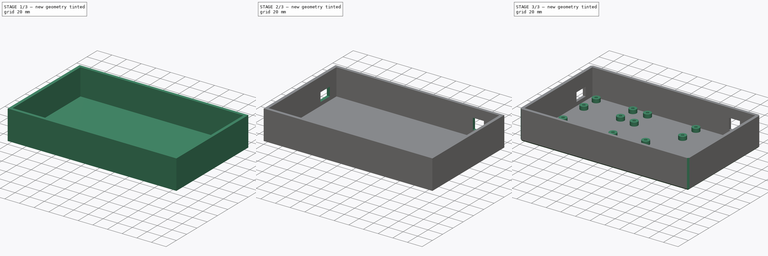
[diagram: build sequence overview — one tinted view per stage of 3, left to right]
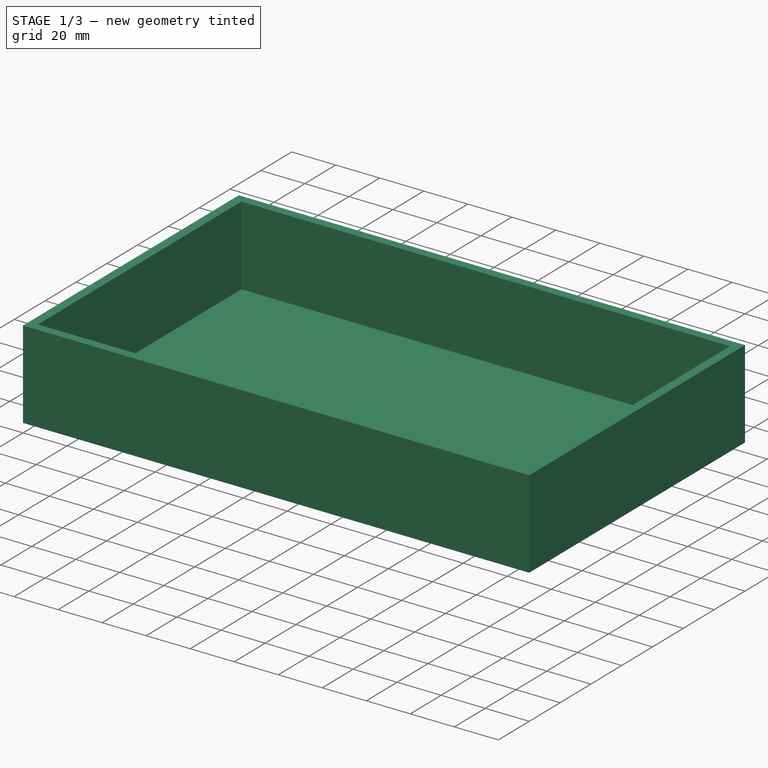
[diagram: stage 1 of 3 — iso view after this stage's code; geometry added in this stage tinted green]
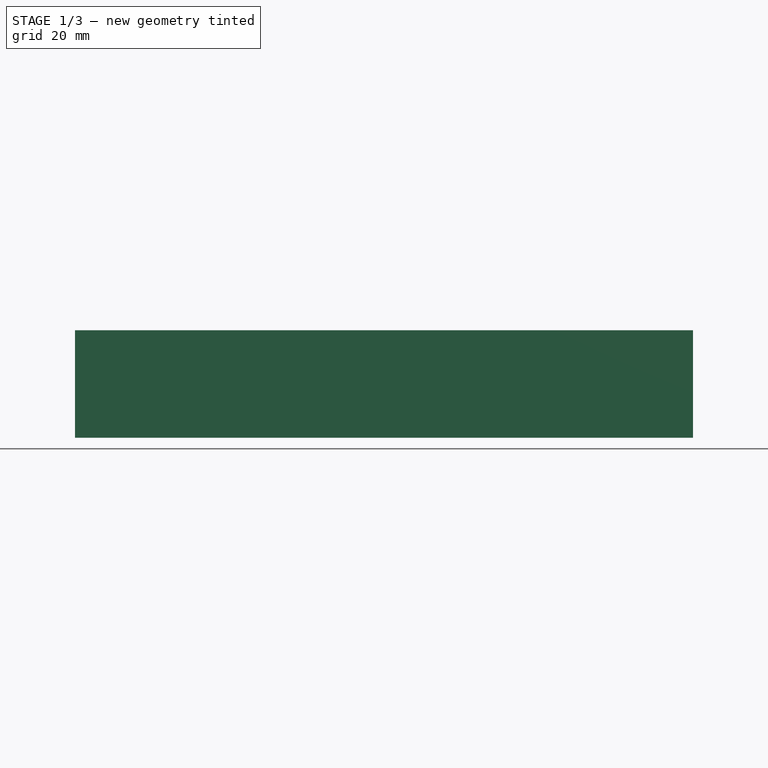
[diagram: stage 1 of 3 — front view after this stage's code; geometry added in this stage tinted green]
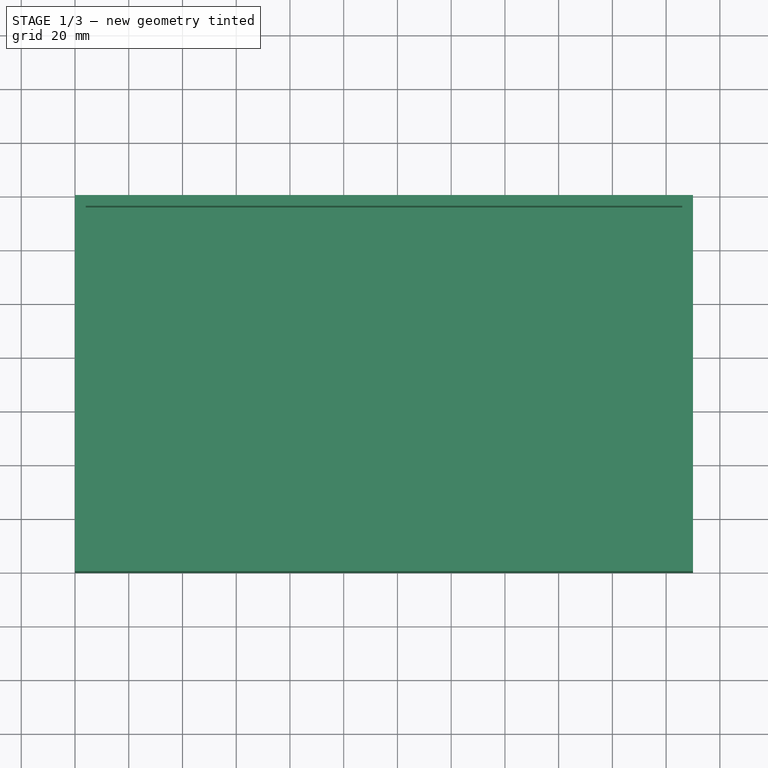
[diagram: stage 1 of 3 — top view after this stage's code; geometry added in this stage tinted green]
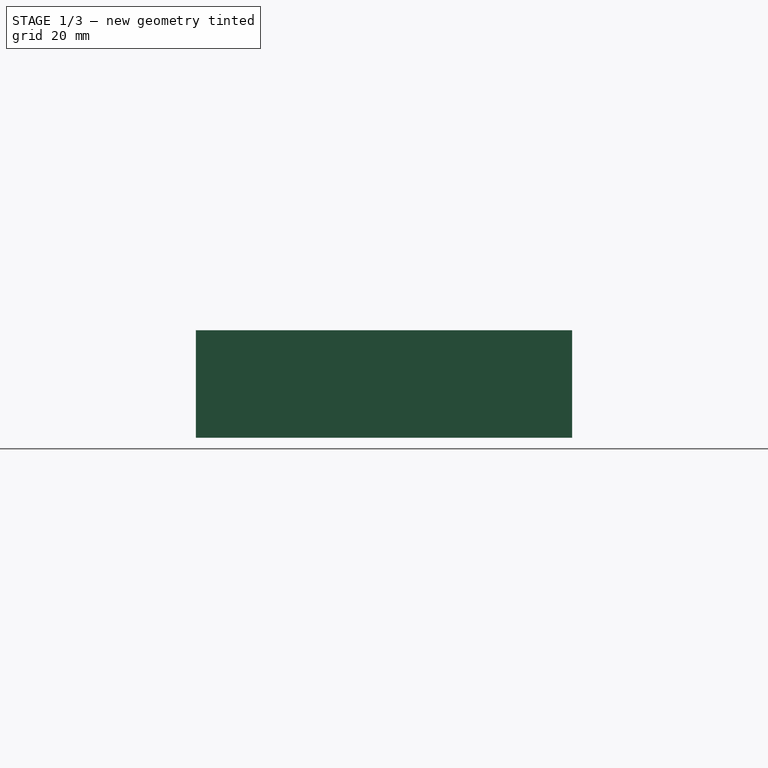
[diagram: stage 1 of 3 — right view after this stage's code; geometry added in this stage tinted green]
FCSTD DOCUMENT  (FreeCAD 0.21R33771 (Git))
Label: Box3
License: All rights reserved
LicenseURL: https://en.wikipedia.org/wiki/All_rights_reserved
objects: Sketcher::SketchObject×6, PartDesign::Pocket×4, PartDesign::Pad×2, PartDesign::Chamfer×1, PartDesign::Body×1
note: 21 computed .brp shape members not serialized (recipe doc carries the construction recipe); baked Part::Feature solids carry a one-line shape summary decoded from their .brp

FEATURE [Sketcher::SketchObject] Sketch
  FullyConstrained = true
  MapMode = 5
  Support = -> [XY_Plane]
  sketch-geometry (4):
    g0: LineSegment StartX=0 StartY=0 StartZ=0 EndX=230 EndY=0 EndZ=0
    g1: LineSegment StartX=230 StartY=0 StartZ=0 EndX=230 EndY=140 EndZ=0
    g2: LineSegment StartX=230 StartY=140 StartZ=0 EndX=0 EndY=140 EndZ=0
    g3: LineSegment StartX=0 StartY=140 StartZ=0 EndX=0 EndY=0 EndZ=0
  constraints (11):
    c: Coincident(g0,g1)
    c: Coincident(g1,g2)
    c: Coincident(g2,g3)
    c: Coincident(g3,g0)
    c: Horizontal(g0)
    c: Horizontal(g2)
    c: Vertical(g1)
    c: Vertical(g3)
    c: Coincident(g0,g-1)
    c: DistanceX(g2,g2) = 230
    c: DistanceY(g3,g3) = 140
FEATURE [PartDesign::Pad] Pad
  Direction = (0,0,1)
  Length = 40
  Length2 = 10
  Profile = -> Sketch
  ReferenceAxis = -> Sketch [N_Axis]
  Type = 0
FEATURE [Sketcher::SketchObject] Sketch001
  ExternalGeometry = -> [Pad]
  FullyConstrained = true
  MapMode = 5
  Placement = pos=(0,0,40) rot=(0,0,1;0rad)
  Support = -> [Pad]
  sketch-geometry (4):
    g0: LineSegment StartX=4 StartY=136 StartZ=0 EndX=226 EndY=136 EndZ=0
    g1: LineSegment StartX=226 StartY=136 StartZ=0 EndX=226 EndY=4 EndZ=0
    g2: LineSegment StartX=226 StartY=4 StartZ=0 EndX=4 EndY=4 EndZ=0
    g3: LineSegment StartX=4 StartY=4 StartZ=0 EndX=4 EndY=136 EndZ=0
  constraints (12):
    c: Coincident(g0,g1)
    c: Coincident(g1,g2)
    c: Coincident(g2,g3)
    c: Coincident(g3,g0)
    c: Horizontal(g0)
    c: Horizontal(g2)
    c: Vertical(g1)
    c: Vertical(g3)
    c: DistanceX(g-4,g0) = 4
    c: DistanceY(g0,g-4) = 4
    c: DistanceY(g-4,g2) = 4
    c: DistanceX(g0,g-5) = 4
FEATURE [PartDesign::Pocket] Pocket
  BaseFeature = -> Pad
  Direction = (0,0,-1)
  Length = 36
  Length2 = 5
  Profile = -> Sketch001
  ReferenceAxis = -> Sketch001 [N_Axis]
  Type = 0
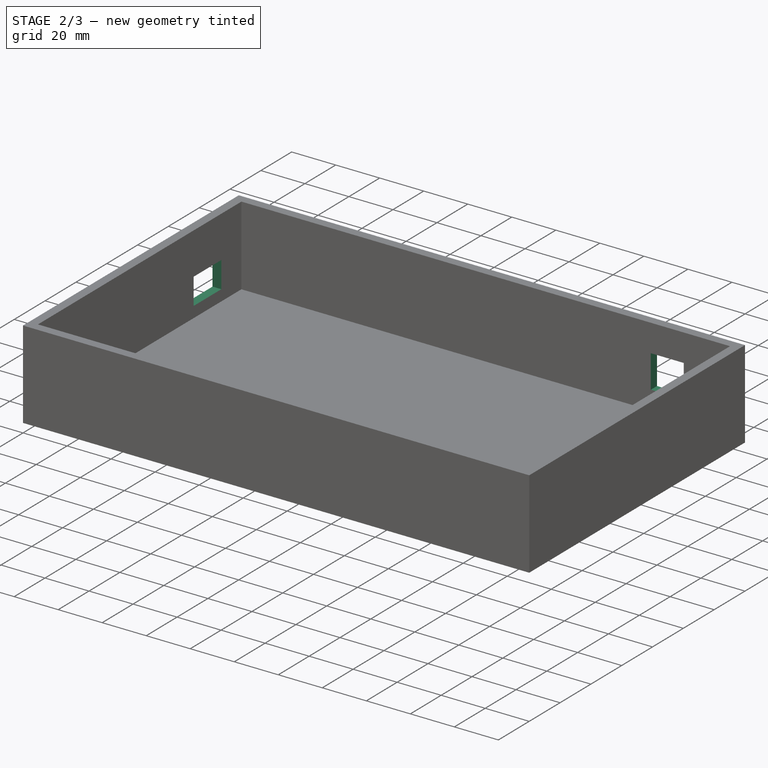
[diagram: stage 2 of 3 — iso view after this stage's code; geometry added in this stage tinted green]
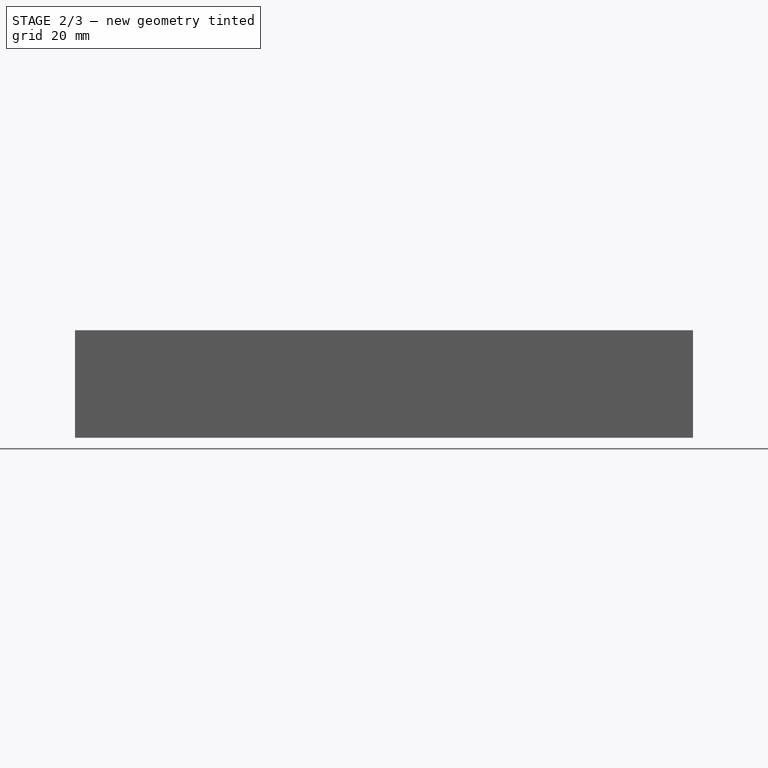
[diagram: stage 2 of 3 — front view after this stage's code; geometry added in this stage tinted green]
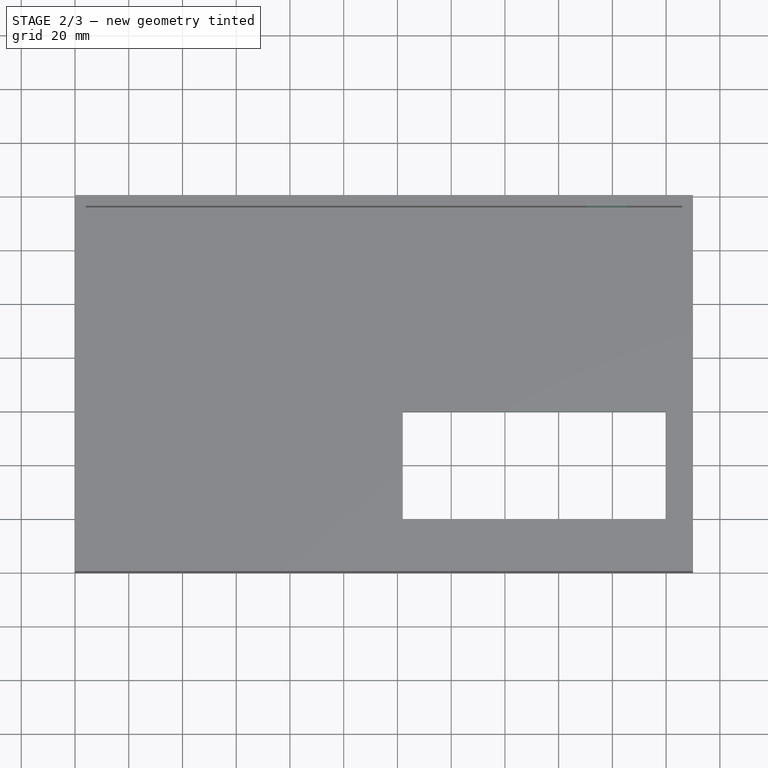
[diagram: stage 2 of 3 — top view after this stage's code; geometry added in this stage tinted green]
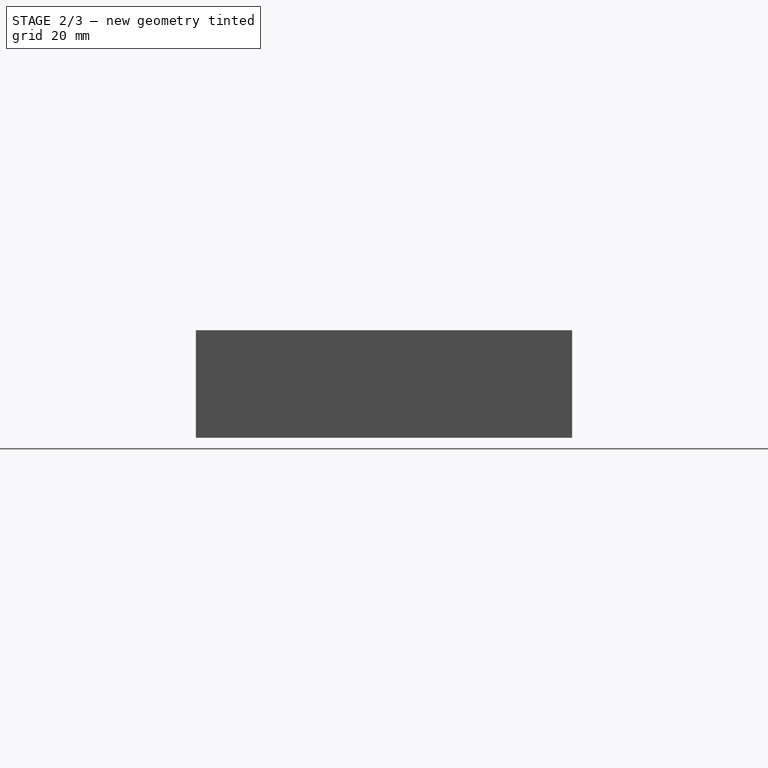
[diagram: stage 2 of 3 — right view after this stage's code; geometry added in this stage tinted green]
FEATURE [Sketcher::SketchObject] Sketch002
  ExternalGeometry = -> [Pocket]
  FullyConstrained = true
  MapMode = 5
  Placement = pos=(0,0,0) rot=(1,0,0;3.14159rad)
  Support = -> [Pocket]
  sketch-geometry (4):
    g0: LineSegment StartX=122 StartY=-20 StartZ=0 EndX=220 EndY=-20 EndZ=0
    g1: LineSegment StartX=220 StartY=-20 StartZ=0 EndX=220 EndY=-60 EndZ=0
    g2: LineSegment StartX=220 StartY=-60 StartZ=0 EndX=122 EndY=-60 EndZ=0
    g3: LineSegment StartX=122 StartY=-60 StartZ=0 EndX=122 EndY=-20 EndZ=0
  constraints (12):
    c: Coincident(g0,g1)
    c: Coincident(g1,g2)
    c: Coincident(g2,g3)
    c: Coincident(g3,g0)
    c: Horizontal(g0)
    c: Horizontal(g2)
    c: Vertical(g1)
    c: Vertical(g3)
    c: DistanceX(g0,g0) = 98
    c: DistanceY(g1,g1) = 40
    c: DistanceY(g0,g-1) = 20
    c: DistanceX(g0,g-4) = 10
FEATURE [PartDesign::Pocket] Pocket001
  BaseFeature = -> Pocket
  Direction = (0,0,1)
  Length = 5
  Length2 = 5
  Profile = -> Sketch002
  ReferenceAxis = -> Sketch002 [N_Axis]
  Type = 0
FEATURE [Sketcher::SketchObject] Sketch003
  ExternalGeometry = -> [Pocket001]
  FullyConstrained = true
  MapMode = 5
  Placement = pos=(0,0,0) rot=(0.57735,-0.57735,-0.57735;2.0944rad)
  Support = -> [Pocket001]
  sketch-geometry (4):
    g0: LineSegment StartX=-123 StartY=21 StartZ=0 EndX=-105 EndY=21 EndZ=0
    g1: LineSegment StartX=-105 StartY=21 StartZ=0 EndX=-105 EndY=9 EndZ=0
    g2: LineSegment StartX=-105 StartY=9 StartZ=0 EndX=-123 EndY=9 EndZ=0
    g3: LineSegment StartX=-123 StartY=9 StartZ=0 EndX=-123 EndY=21 EndZ=0
  constraints (12):
    c: Coincident(g0,g1)
    c: Coincident(g1,g2)
    c: Coincident(g2,g3)
    c: Coincident(g3,g0)
    c: Horizontal(g0)
    c: Horizontal(g2)
    c: Vertical(g1)
    c: Vertical(g3)
    c: DistanceX(g0,g0) = 18
    c: DistanceY(g3,g3) = 12
    c: DistanceX(g-3,g2) = 17
    c: DistanceY(g-4,g2) = 9
FEATURE [PartDesign::Pocket] Pocket002
  BaseFeature = -> Pocket001
  Direction = (1,0,0)
  Length = 5
  Length2 = 5
  Profile = -> Sketch003
  ReferenceAxis = -> Sketch003 [N_Axis]
  Type = 0
FEATURE [Sketcher::SketchObject] Sketch004
  ExternalGeometry = -> [Pocket002]
  FullyConstrained = true
  MapMode = 5
  Placement = pos=(0,140,0) rot=(0,0.707107,0.707107;3.14159rad)
  Support = -> [Pocket002]
  sketch-geometry (4):
    g0: LineSegment StartX=-205 StartY=27.5 StartZ=0 EndX=-190 EndY=27.5 EndZ=0
    g1: LineSegment StartX=-190 StartY=27.5 StartZ=0 EndX=-190 EndY=12.5 EndZ=0
    g2: LineSegment StartX=-190 StartY=12.5 StartZ=0 EndX=-205 EndY=12.5 EndZ=0
    g3: LineSegment StartX=-205 StartY=12.5 StartZ=0 EndX=-205 EndY=27.5 EndZ=0
  constraints (12):
    c: Coincident(g0,g1)
    c: Coincident(g1,g2)
    c: Coincident(g2,g3)
    c: Coincident(g3,g0)
    c: Horizontal(g0)
    c: Horizontal(g2)
    c: Vertical(g1)
    c: Vertical(g3)
    c: DistanceX(g0,g0) = 15
    c: DistanceY(g3,g3) = 15
    c: DistanceY(g0,g-4) = 12.5
    c: DistanceX(g-3,g0) = 25
FEATURE [PartDesign::Pocket] Pocket003
  BaseFeature = -> Pocket002
  Direction = (0,-1,2e-16)
  Length = 5
  Length2 = 5
  Profile = -> Sketch004
  ReferenceAxis = -> Sketch004 [N_Axis]
  Type = 0
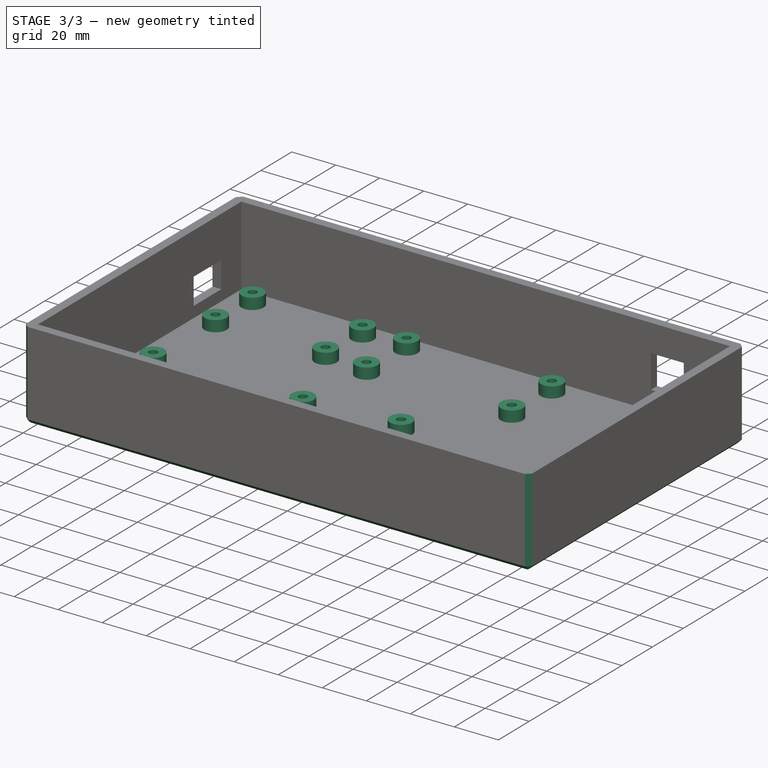
[diagram: stage 3 of 3 — iso view after this stage's code; geometry added in this stage tinted green]
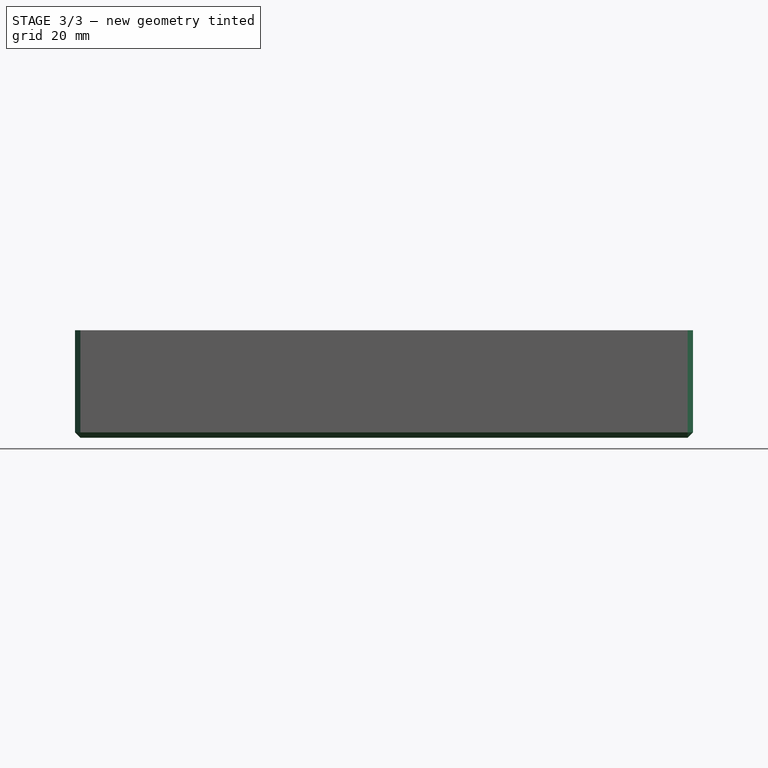
[diagram: stage 3 of 3 — front view after this stage's code; geometry added in this stage tinted green]
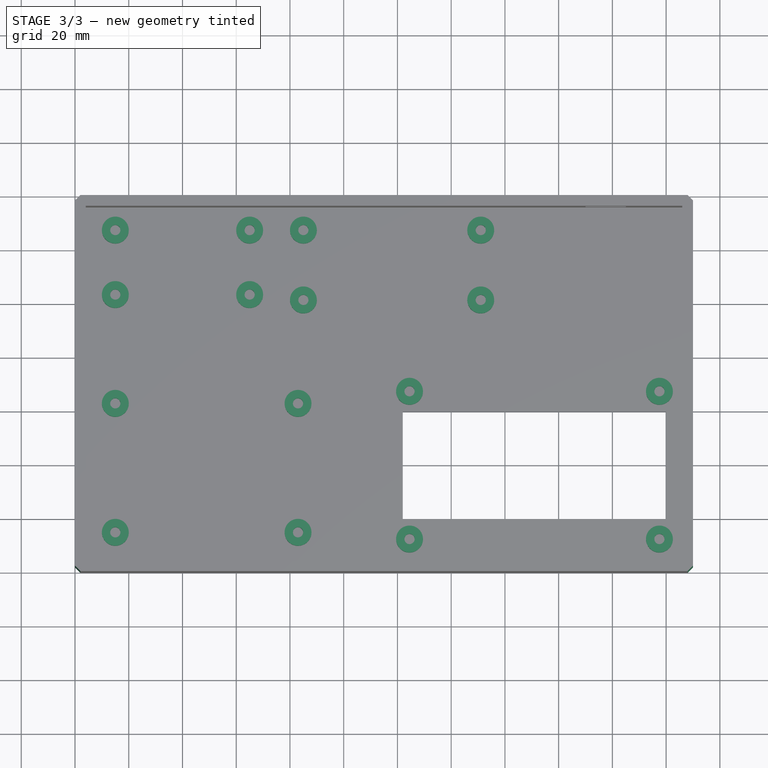
[diagram: stage 3 of 3 — top view after this stage's code; geometry added in this stage tinted green]
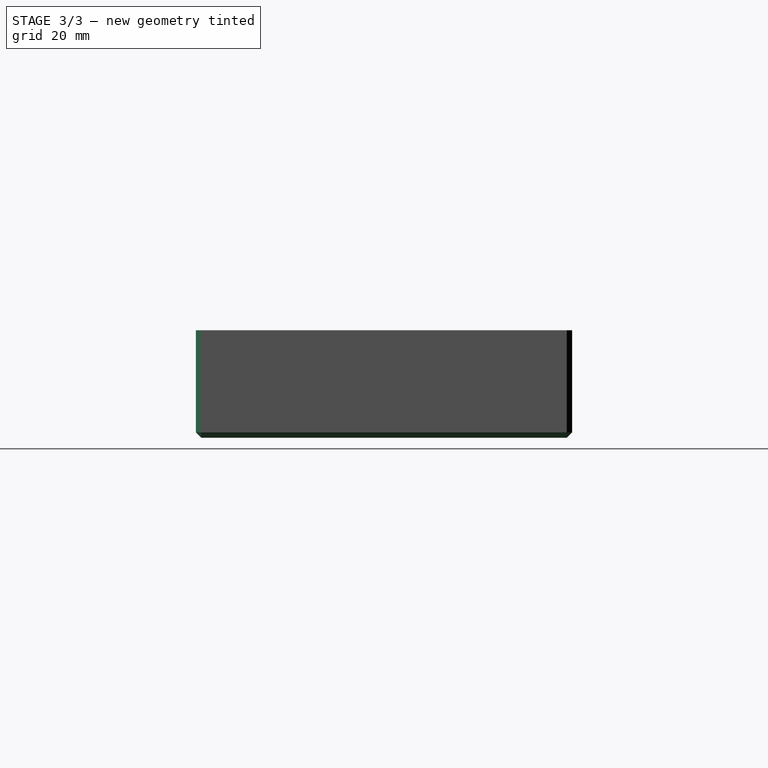
[diagram: stage 3 of 3 — right view after this stage's code; geometry added in this stage tinted green]
FEATURE [Sketcher::SketchObject] Sketch005
  ExternalGeometry = -> [Pocket003]
  FullyConstrained = true
  MapMode = 5
  Placement = pos=(0,0,4) rot=(0,0,1;0rad)
  Support = -> [Pocket003]
  sketch-geometry (32):
    g0: Circle CenterX=217.5 CenterY=12.5 CenterZ=0 NormalX=0 NormalY=0 NormalZ=1 AngleXU=0 Radius=5
    g1: Circle CenterX=217.5 CenterY=12.5 CenterZ=0 NormalX=0 NormalY=0 NormalZ=1 AngleXU=0 Radius=1.9
    g2: Circle CenterX=124.5 CenterY=12.5 CenterZ=0 NormalX=0 NormalY=0 NormalZ=1 AngleXU=0 Radius=5
    g3: Circle CenterX=124.5 CenterY=12.5 CenterZ=0 NormalX=0 NormalY=0 NormalZ=1 AngleXU=0 Radius=1.9
    g4: Circle CenterX=217.5 CenterY=67.5 CenterZ=0 NormalX=0 NormalY=0 NormalZ=1 AngleXU=0 Radius=5
    g5: Circle CenterX=217.5 CenterY=67.5 CenterZ=0 NormalX=0 NormalY=0 NormalZ=1 AngleXU=0 Radius=1.9
    g6: Circle CenterX=124.5 CenterY=67.5 CenterZ=0 NormalX=0 NormalY=0 NormalZ=1 AngleXU=0 Radius=5
    g7: Circle CenterX=124.5 CenterY=67.5 CenterZ=0 NormalX=0 NormalY=0 NormalZ=1 AngleXU=0 Radius=1.9
    g8: Circle CenterX=15 CenterY=127.5 CenterZ=0 NormalX=0 NormalY=0 NormalZ=1 AngleXU=0 Radius=5
    g9: Circle CenterX=15 CenterY=127.5 CenterZ=0 NormalX=0 NormalY=0 NormalZ=1 AngleXU=0 Radius=1.9
    g10: Circle CenterX=65 CenterY=127.5 CenterZ=0 NormalX=0 NormalY=0 NormalZ=1 AngleXU=0 Radius=5
    g11: Circle CenterX=65 CenterY=127.5 CenterZ=0 NormalX=0 NormalY=0 NormalZ=1 AngleXU=0 Radius=1.9
    g12: Circle CenterX=65 CenterY=103.5 CenterZ=0 NormalX=0 NormalY=0 NormalZ=1 AngleXU=0 Radius=5
    g13: Circle CenterX=65 CenterY=103.5 CenterZ=0 NormalX=0 NormalY=0 NormalZ=1 AngleXU=0 Radius=1.9
    g14: Circle CenterX=15 CenterY=103.5 CenterZ=0 NormalX=0 NormalY=0 NormalZ=1 AngleXU=0 Radius=5
    g15: Circle CenterX=15 CenterY=103.5 CenterZ=0 NormalX=0 NormalY=0 NormalZ=1 AngleXU=0 Radius=1.9
    g16: Circle CenterX=15 CenterY=63 CenterZ=0 NormalX=0 NormalY=0 NormalZ=1 AngleXU=0 Radius=5
    g17: Circle CenterX=15 CenterY=63 CenterZ=0 NormalX=0 NormalY=0 NormalZ=1 AngleXU=0 Radius=1.9
    g18: Circle CenterX=15 CenterY=15 CenterZ=0 NormalX=0 NormalY=0 NormalZ=1 AngleXU=0 Radius=5
    g19: Circle CenterX=15 CenterY=15 CenterZ=0 NormalX=0 NormalY=0 NormalZ=1 AngleXU=0 Radius=1.9
    g20: Circle CenterX=83 CenterY=15 CenterZ=0 NormalX=0 NormalY=0 NormalZ=1 AngleXU=0 Radius=5
    g21: Circle CenterX=83 CenterY=15 CenterZ=0 NormalX=0 NormalY=0 NormalZ=1 AngleXU=0 Radius=1.9
    g22: Circle CenterX=83 CenterY=63 CenterZ=0 NormalX=0 NormalY=0 NormalZ=1 AngleXU=0 Radius=5
    g23: Circle CenterX=83 CenterY=63 CenterZ=0 NormalX=0 NormalY=0 NormalZ=1 AngleXU=0 Radius=1.9
    g24: Circle CenterX=85 CenterY=127.5 CenterZ=0 NormalX=0 NormalY=0 NormalZ=1 AngleXU=0 Radius=5
    g25: Circle CenterX=85 CenterY=127.5 CenterZ=0 NormalX=0 NormalY=0 NormalZ=1 AngleXU=0 Radius=1.9
    g26: Circle CenterX=85 CenterY=101.5 CenterZ=0 NormalX=0 NormalY=0 NormalZ=1 AngleXU=0 Radius=5
    g27: Circle CenterX=85 CenterY=101.5 CenterZ=0 NormalX=0 NormalY=0 NormalZ=1 AngleXU=0 Radius=1.9
    g28: Circle CenterX=151 CenterY=101.5 CenterZ=0 NormalX=0 NormalY=0 NormalZ=1 AngleXU=0 Radius=5
    g29: Circle CenterX=151 CenterY=101.5 CenterZ=0 NormalX=0 NormalY=0 NormalZ=1 AngleXU=0 Radius=1.9
    g30: Circle CenterX=151 CenterY=127.5 CenterZ=0 NormalX=0 NormalY=0 NormalZ=1 AngleXU=0 Radius=5
    g31: Circle CenterX=151 CenterY=127.5 CenterZ=0 NormalX=0 NormalY=0 NormalZ=1 AngleXU=0 Radius=1.9
  constraints (81):
    c: Coincident(g1,g0)
    c: Radius(g1) = 1.9
    c: Radius(g0) = 5
    c: DistanceY(g-4,g0) = 12.5
    c: Coincident(g3,g2)
    c: Equal(g1,g3) = 1.9
    c: Equal(g0,g2) = 5
    c: DistanceX(g2,g0) = 93
    c: DistanceY(g-4,g2) = 12.5
    c: DistanceX(g0,g-4) = 12.5
    c: Coincident(g5,g4)
    c: Equal(g1,g5) = 1.9
    c: Equal(g0,g4) = 5
    c: DistanceX(g4,g-4) = 12.5
    c: DistanceY(g0,g4) = 55
    c: Coincident(g7,g6)
    c: Equal(g1,g7) = 1.9
    c: Equal(g0,g6) = 5
    c: DistanceX(g6,g4) = 93
    c: DistanceY(g2,g6) = 55
    c: Coincident(g9,g8)
    c: Equal(g1,g9) = 1.9
    c: Equal(g0,g8) = 5
    c: DistanceY(g8,g-5) = 12.5
    c: DistanceX(g-5,g8) = 15
    c: Coincident(g11,g10)
    c: Radius(g11) = 1.9
    c: Radius(g10) = 5
    c: DistanceY(g10,g-5) = 12.5
    c: DistanceX(g8,g10) = 50
    c: Coincident(g13,g12)
    c: Radius(g13) = 1.9
    c: Radius(g12) = 5
    c: Coincident(g15,g14)
    c: Radius(g15) = 1.9
    c: Radius(g14) = 5
    c: DistanceX(g-5,g-5) = 0
    c: DistanceX(g-5,g14) = 15
    c: DistanceY(g14,g8) = 24
    c: DistanceX(g14,g12) = 50
    c: DistanceY(g12,g10) = 24
    c: Coincident(g17,g16)
    c: Equal(g11,g17) = 1.9
    c: Equal(g10,g16) = 5
    c: Coincident(g19,g18)
    c: Equal(g13,g19) = 1.9
    c: Equal(g12,g18) = 5
    c: DistanceY(g18,g16) = 48
    c: DistanceX(g-5,g18) = 15
    c: DistanceY(g-5,g18) = 15
    c: Coincident(g21,g20)
    c: Equal(g1,g21) = 1.9
    c: Equal(g0,g20) = 5
    c: DistanceX(g18,g20) = 68
    c: DistanceX(g-5,g16) = 15
    c: DistanceY(g-5,g20) = 15
    c: Coincident(g23,g22)
    c: Equal(g13,g23) = 1.9
    c: Equal(g12,g22) = 5
    c: DistanceX(g16,g22) = 68
    c: DistanceY(g20,g22) = 48
    c: Coincident(g25,g24)
    c: Equal(g11,g25) = 1.9
    c: Equal(g10,g24) = 5
    c: Coincident(g27,g26)
    c: Equal(g13,g27) = 1.9
    c: Equal(g12,g26) = 5
    c: DistanceX(g10,g24) = 20
    c: DistanceX(g12,g26) = 20
    c: DistanceY(g26,g24) = 26
    c: DistanceY(g24,g10) = 0
    c: Coincident(g29,g28)
    c: Equal(g15,g29) = 1.9
    c: Equal(g14,g28) = 5
    c: Coincident(g31,g30)
    c: Equal(g15,g31) = 1.9
    c: Equal(g14,g30) = 5
    c: DistanceX(g24,g30) = 66
    c: DistanceX(g26,g28) = 66
    c: DistanceY(g28,g30) = 26
    c: DistanceY(g30,g24) = 0
FEATURE [PartDesign::Pad] Pad001
  BaseFeature = -> Pocket003
  Direction = (0,0,1)
  Length = 5
  Length2 = 10
  Profile = -> Sketch005
  ReferenceAxis = -> Sketch005 [N_Axis]
  Type = 0
FEATURE [PartDesign::Chamfer] Chamfer
  Angle = 45
  Base = -> Pad001 [Edge5,Edge15,Edge12,Edge13,Edge2,Edge3,Edge1,Edge6]
  BaseFeature = -> Pad001
  ChamferType = 0
  FlipDirection = false
  Size = 2
  Size2 = 1
  SupportTransform = false
  UseAllEdges = false
FEATURE [PartDesign::Body] Body
  Group = -> [Sketch,Pad,Sketch001,Pocket,Sketch002,Pocket001,Sketch003,Pocket002,Sketch004,Pocket003,Sketch005,Pad001,Chamfer]
  Origin = -> Origin
  Tip = -> Chamfer
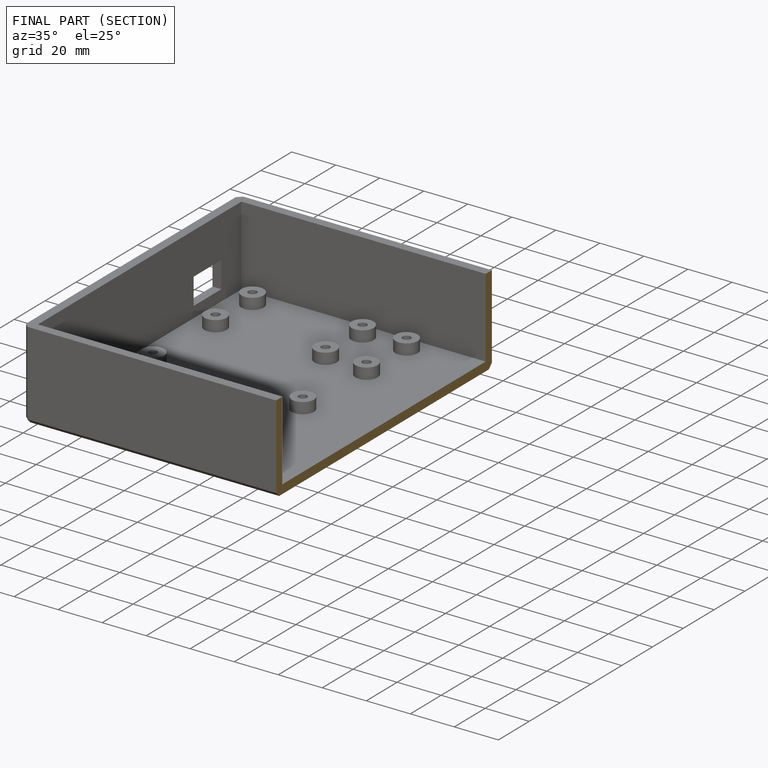
[diagram: finished part — half-section view (interior)]
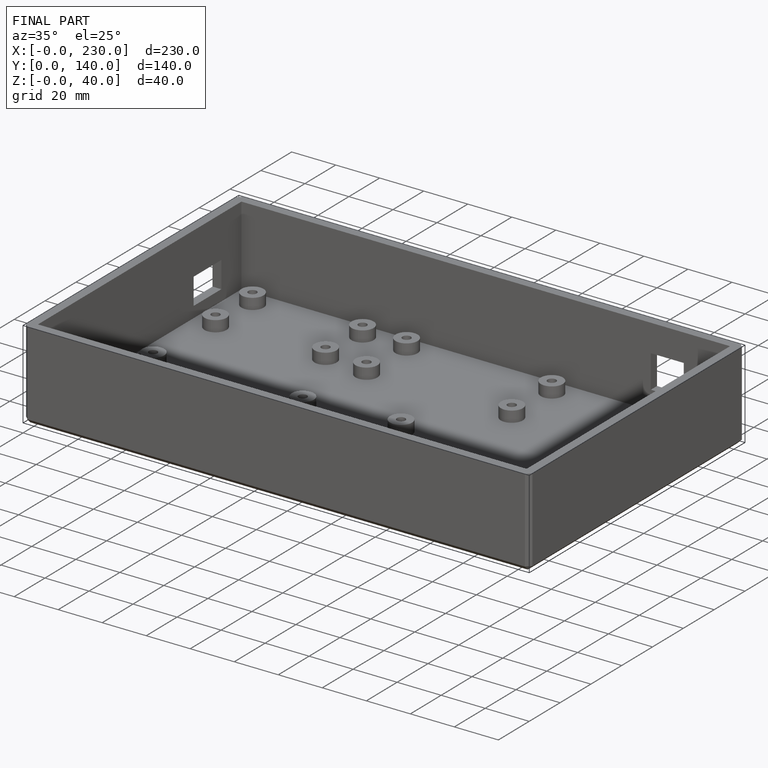
[diagram: finished part — iso view with bounding-box wireframe]
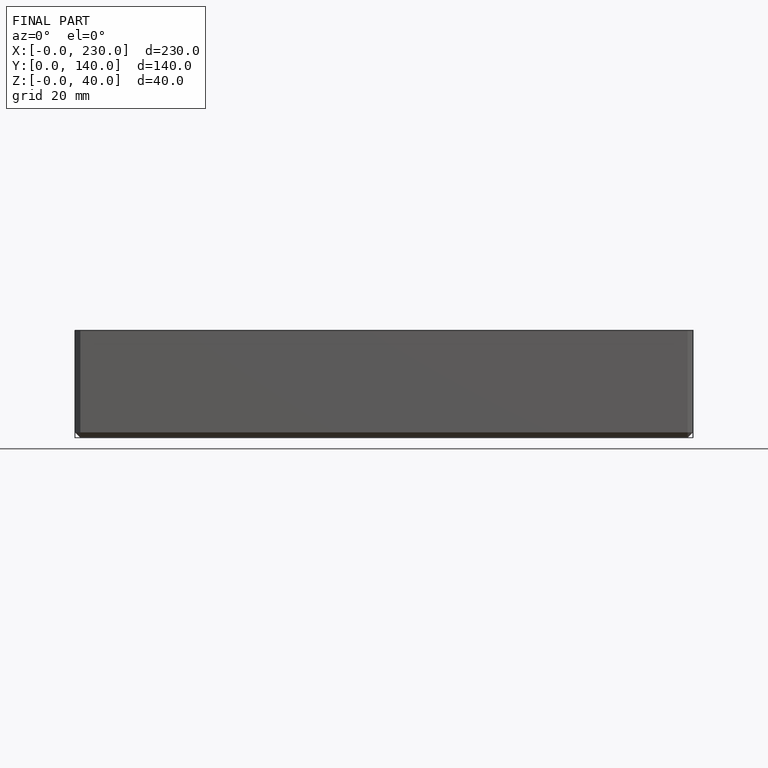
[diagram: finished part — front view with bounding-box wireframe]
